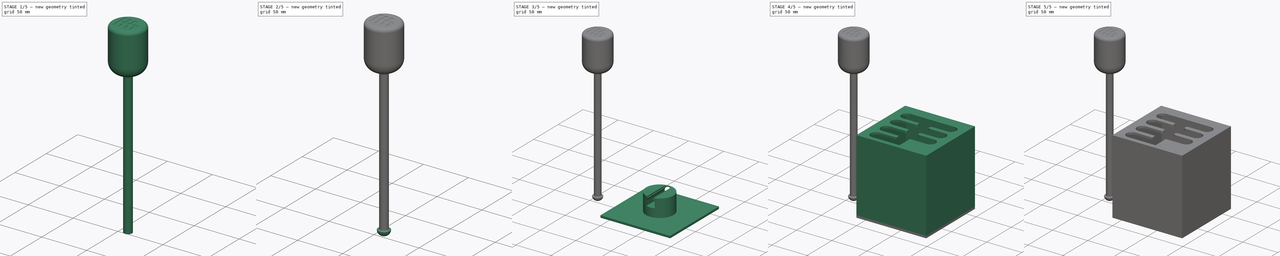
[diagram: build sequence overview — one tinted view per stage of 5, left to right]
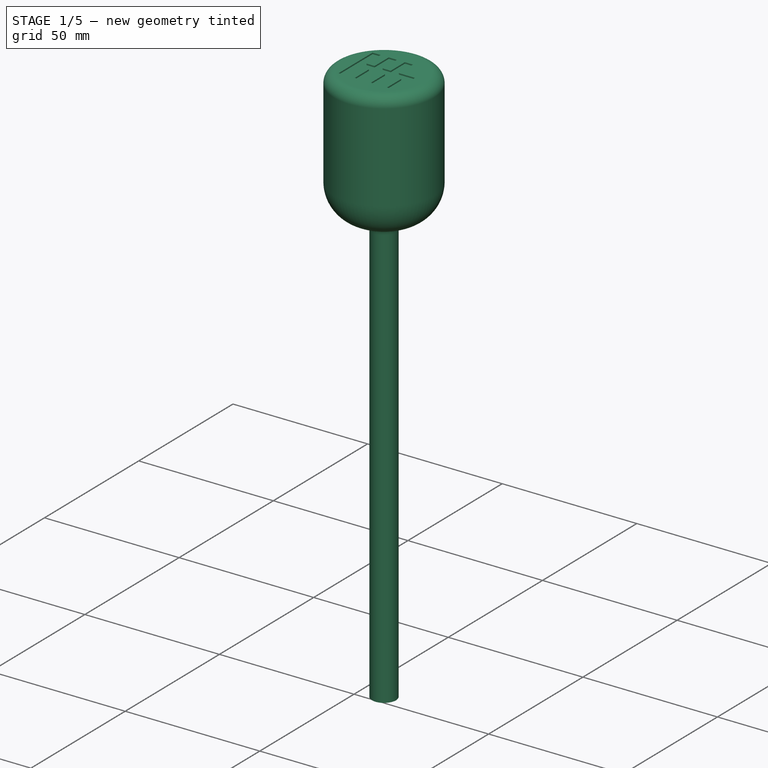
[diagram: stage 1 of 5 — iso view after this stage's code; geometry added in this stage tinted green]
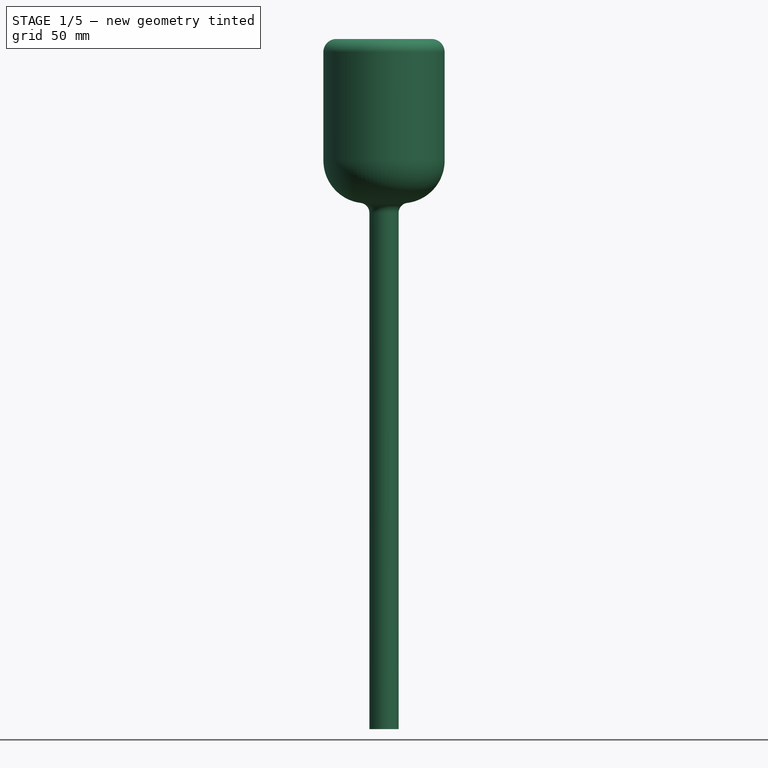
[diagram: stage 1 of 5 — front view after this stage's code; geometry added in this stage tinted green]
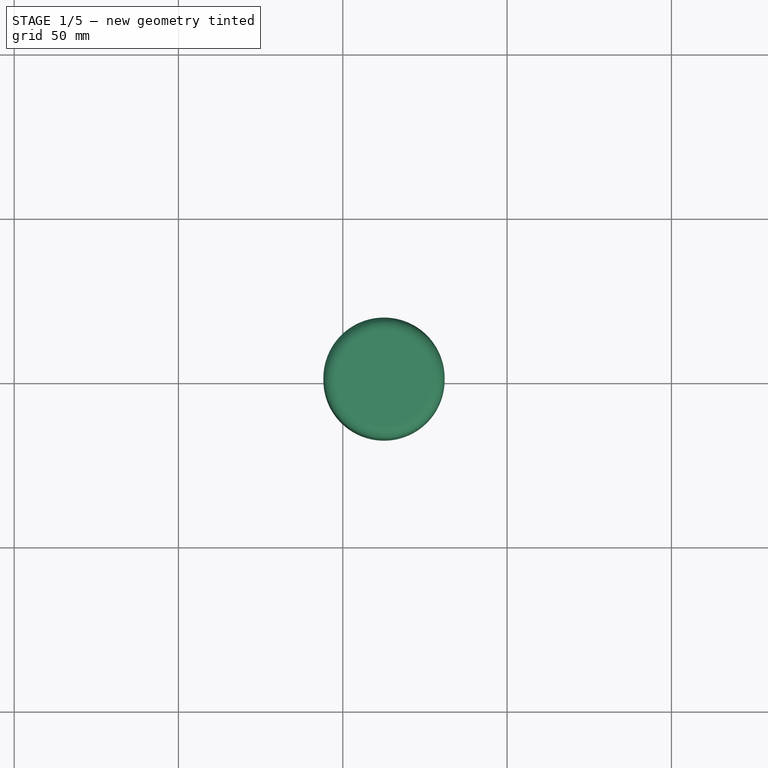
[diagram: stage 1 of 5 — top view after this stage's code; geometry added in this stage tinted green]
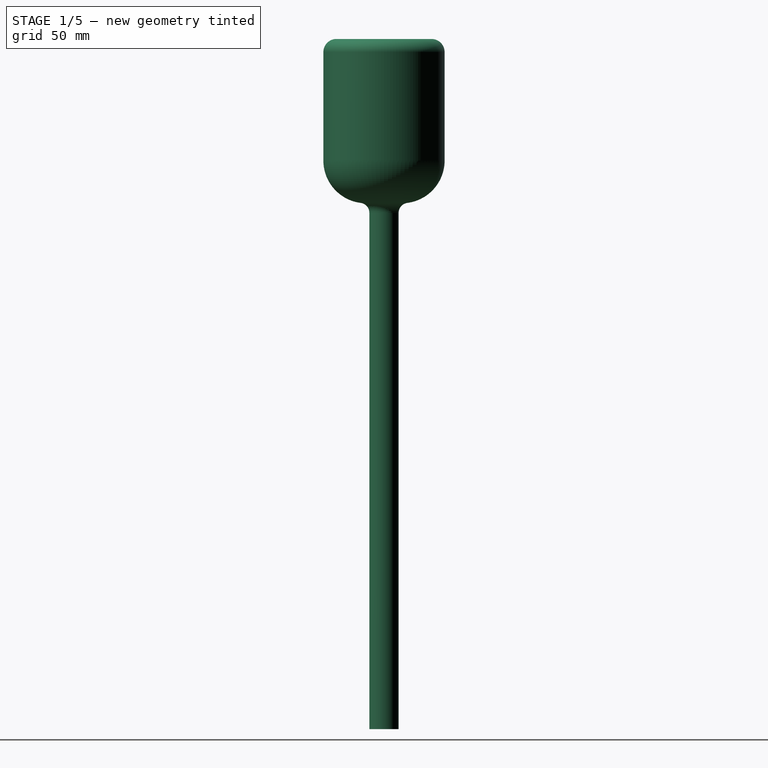
[diagram: stage 1 of 5 — right view after this stage's code; geometry added in this stage tinted green]
FCSTD DOCUMENT  (FreeCAD 0.20R29410 (Git))
Label: Cad_Project
License: All rights reserved
LicenseURL: http://en.wikipedia.org/wiki/All_rights_reserved
objects: Sketcher::SketchObject×26, PartDesign::Pocket×12, PartDesign::Pad×11, PartDesign::Fillet×11, PartDesign::Body×3
note: 97 computed .brp shape members not serialized (recipe doc carries the construction recipe); baked Part::Feature solids carry a one-line shape summary decoded from their .brp

FEATURE [Sketcher::SketchObject] Sketch005
  FullyConstrained = true
  MapMode = 5
  Placement = pos=(0,0,0) rot=(1,0,0;1.5708rad)
  Support = -> [XZ_Plane001]
FEATURE [Sketcher::SketchObject] Sketch006
  FullyConstrained = false
  MapMode = 5
  Support = -> [XY_Plane001]
  sketch-geometry (1):
    g0: Circle CenterX=-46.5019 CenterY=48 CenterZ=0 NormalX=0 NormalY=0 NormalZ=1 AngleXU=0 Radius=4.50189
FEATURE [PartDesign::Body] Body001
  Group = -> [Sketch005,Sketch006]
  Origin = -> Origin001
FEATURE [Sketcher::SketchObject] Sketch007
  FullyConstrained = false
  MapMode = 5
  Support = -> [XY_Plane002]
  sketch-geometry (1):
    g0: Circle CenterX=-37.4568 CenterY=48 CenterZ=0 NormalX=0 NormalY=0 NormalZ=1 AngleXU=0 Radius=4.4568
FEATURE [PartDesign::Pad] Pad003
  Direction = (0,0,1)
  Length = 160
  Length2 = 10
  Profile = -> Sketch007
  ReferenceAxis = -> Sketch007 [N_Axis]
  Type = 0
FEATURE [Sketcher::SketchObject] Sketch008
  FullyConstrained = false
  MapMode = 5
  Placement = pos=(0,0,160) rot=(0,0,1;0rad)
  Support = -> [Pad003]
  sketch-geometry (1):
    g0: Circle CenterX=-37.4547 CenterY=48 CenterZ=0 NormalX=0 NormalY=0 NormalZ=1 AngleXU=0 Radius=18.4513
FEATURE [PartDesign::Pad] Pad004
  BaseFeature = -> Pad003
  Direction = (0,0,1)
  Length = 50
  Length2 = 10
  Profile = -> Sketch008
  ReferenceAxis = -> Sketch008 [N_Axis]
  Type = 0
FEATURE [Sketcher::SketchObject] Sketch009
  FullyConstrained = true
  MapMode = 5
  Placement = pos=(0,0,210) rot=(0,0,1;0rad)
  Support = -> [Pad004]
FEATURE [PartDesign::Fillet] Fillet
  Base = -> Pad004 [Edge3]
  BaseFeature = -> Pad004
  Radius = 4
  SupportTransform = false
  UseAllEdges = false
FEATURE [PartDesign::Fillet] Fillet001
  Base = -> Fillet [Edge3]
  BaseFeature = -> Fillet
  Radius = 13
  SupportTransform = false
  UseAllEdges = false
FEATURE [PartDesign::Fillet] Fillet002
  Base = -> Fillet001 [Edge8]
  BaseFeature = -> Fillet001
  Radius = 3
  SupportTransform = false
  UseAllEdges = false
FEATURE [Sketcher::SketchObject] Sketch010
  FullyConstrained = false
  MapMode = 5
  Placement = pos=(0,0,210) rot=(0,0,1;0rad)
  Support = -> [Fillet002]
  sketch-geometry (4):
    g0: LineSegment StartX=-48 StartY=49.4787 StartZ=0 EndX=-27 EndY=49.4787 EndZ=0
    g1: LineSegment StartX=-27 StartY=49.4787 StartZ=0 EndX=-27 EndY=46.4908 EndZ=0
    g2: LineSegment StartX=-27 StartY=46.4908 StartZ=0 EndX=-48 EndY=46.4908 EndZ=0
    g3: LineSegment StartX=-48 StartY=46.4908 StartZ=0 EndX=-48 EndY=49.4787 EndZ=0
  constraints (8):
    c: Coincident(g0,g1)
    c: Coincident(g1,g2)
    c: Coincident(g2,g3)
    c: Coincident(g3,g0)
    c: Horizontal(g0)
    c: Horizontal(g2)
    c: Vertical(g1)
    c: Vertical(g3)
FEATURE [PartDesign::Pocket] Pocket001
  BaseFeature = -> Fillet002
  Direction = (0,0,-1)
  Length = 0.5
  Length2 = 5
  Profile = -> Sketch010
  ReferenceAxis = -> Sketch010 [N_Axis]
  Type = 0
FEATURE [Sketcher::SketchObject] Sketch011
  FullyConstrained = false
  MapMode = 5
  Placement = pos=(0,0,210) rot=(0,0,1;0rad)
  Support = -> [Pocket001]
  sketch-geometry (28):
    g0: LineSegment StartX=-48 StartY=49.5227 StartZ=0 EndX=-48 EndY=46.5039 EndZ=0
    g1: LineSegment StartX=-48 StartY=46.5039 StartZ=0 EndX=-48 EndY=39 EndZ=0
    g2: LineSegment StartX=-48 StartY=39 StartZ=0 EndX=-45 EndY=39 EndZ=0
    g3: LineSegment StartX=-45 StartY=39 StartZ=0 EndX=-45 EndY=46.456 EndZ=0
    g4: LineSegment StartX=-45 StartY=46.456 StartZ=0 EndX=-42 EndY=46.456 EndZ=0
    g5: LineSegment StartX=-42 StartY=46.456 StartZ=0 EndX=-42 EndY=39 EndZ=0
    g6: LineSegment StartX=-42 StartY=39 StartZ=0 EndX=-39 EndY=39 EndZ=0
    g7: LineSegment StartX=-39 StartY=39 StartZ=0 EndX=-39 EndY=46.456 EndZ=0
    g8: LineSegment StartX=-39 StartY=46.456 StartZ=0 EndX=-36 EndY=46.456 EndZ=0
    g9: LineSegment StartX=-36 StartY=46.456 StartZ=0 EndX=-36 EndY=39 EndZ=0
    g10: LineSegment StartX=-36 StartY=39 StartZ=0 EndX=-33 EndY=39 EndZ=0
    g11: LineSegment StartX=-33 StartY=39 StartZ=0 EndX=-33 EndY=46.5039 EndZ=0
    g12: LineSegment StartX=-33 StartY=46.5039 StartZ=0 EndX=-30 EndY=46.5039 EndZ=0
    g13: LineSegment StartX=-30 StartY=46.5039 StartZ=0 EndX=-30 EndY=39 EndZ=0
    g14: LineSegment StartX=-30 StartY=39 StartZ=0 EndX=-27 EndY=39 EndZ=0
    g15: LineSegment StartX=-27 StartY=39 StartZ=0 EndX=-27 EndY=49.5227 EndZ=0
    g16: LineSegment StartX=-27 StartY=49.5227 StartZ=0 EndX=-33 EndY=49.5227 EndZ=0
    g17: LineSegment StartX=-33 StartY=49.5227 StartZ=0 EndX=-33 EndY=57 EndZ=0
    g18: LineSegment StartX=-33 StartY=57 StartZ=0 EndX=-36 EndY=57 EndZ=0
    g19: LineSegment StartX=-36 StartY=57 StartZ=0 EndX=-36 EndY=49.4748 EndZ=0
    g20: LineSegment StartX=-36 StartY=49.4748 StartZ=0 EndX=-39 EndY=49.4748 EndZ=0
    g21: LineSegment StartX=-39 StartY=49.4748 StartZ=0 EndX=-39 EndY=57 EndZ=0
    g22: LineSegment StartX=-39 StartY=57 StartZ=0 EndX=-42 EndY=57 EndZ=0
    g23: LineSegment StartX=-42 StartY=57 StartZ=0 EndX=-42 EndY=49.4748 EndZ=0
    g24: LineSegment StartX=-42 StartY=49.4748 StartZ=0 EndX=-45 EndY=49.4748 EndZ=0
    g25: LineSegment StartX=-45 StartY=49.4748 StartZ=0 EndX=-45 EndY=57 EndZ=0
    g26: LineSegment StartX=-45 StartY=57 StartZ=0 EndX=-48 EndY=57 EndZ=0
    g27: LineSegment StartX=-48 StartY=57 StartZ=0 EndX=-48 EndY=49.5227 EndZ=0
  constraints (56):
    c: Vertical(g0)
    c: Coincident(g0,g1)
    c: Vertical(g1)
    c: Coincident(g1,g2)
    c: Horizontal(g2)
    c: Coincident(g2,g3)
    c: Vertical(g3)
    c: Coincident(g3,g4)
    c: Horizontal(g4)
    c: Coincident(g4,g5)
    c: Vertical(g5)
    c: Coincident(g5,g6)
    c: Horizontal(g6)
    c: Coincident(g6,g7)
    c: Vertical(g7)
    c: Coincident(g7,g8)
    c: Horizontal(g8)
    c: Coincident(g8,g9)
    c: Vertical(g9)
    c: Coincident(g9,g10)
    c: Horizontal(g10)
    c: Coincident(g10,g11)
    c: Vertical(g11)
    c: Coincident(g11,g12)
    c: Horizontal(g12)
    c: Coincident(g12,g13)
    c: Vertical(g13)
    c: Coincident(g13,g14)
    c: Horizontal(g14)
    c: Coincident(g14,g15)
    c: Vertical(g15)
    c: Coincident(g15,g16)
    c: Horizontal(g16)
    c: Coincident(g16,g17)
    c: Vertical(g17)
    c: Coincident(g17,g18)
    c: Horizontal(g18)
    c: Coincident(g18,g19)
    c: Vertical(g19)
    c: Coincident(g19,g20)
    c: Horizontal(g20)
    c: Coincident(g20,g21)
    c: Vertical(g21)
    c: Coincident(g21,g22)
    c: Horizontal(g22)
    c: Coincident(g22,g23)
    c: Vertical(g23)
    c: Coincident(g23,g24)
    c: Horizontal(g24)
    c: Coincident(g24,g25)
    c: Vertical(g25)
    c: Coincident(g25,g26)
    c: Horizontal(g26)
    c: Coincident(g26,g27)
    c: Coincident(g27,g0)
    c: Vertical(g27)
FEATURE [PartDesign::Pocket] Pocket002
  BaseFeature = -> Pocket001
  Direction = (0,0,-1)
  Length = 0.5
  Length2 = 5
  Profile = -> Sketch011
  ReferenceAxis = -> Sketch011 [N_Axis]
  Type = 0
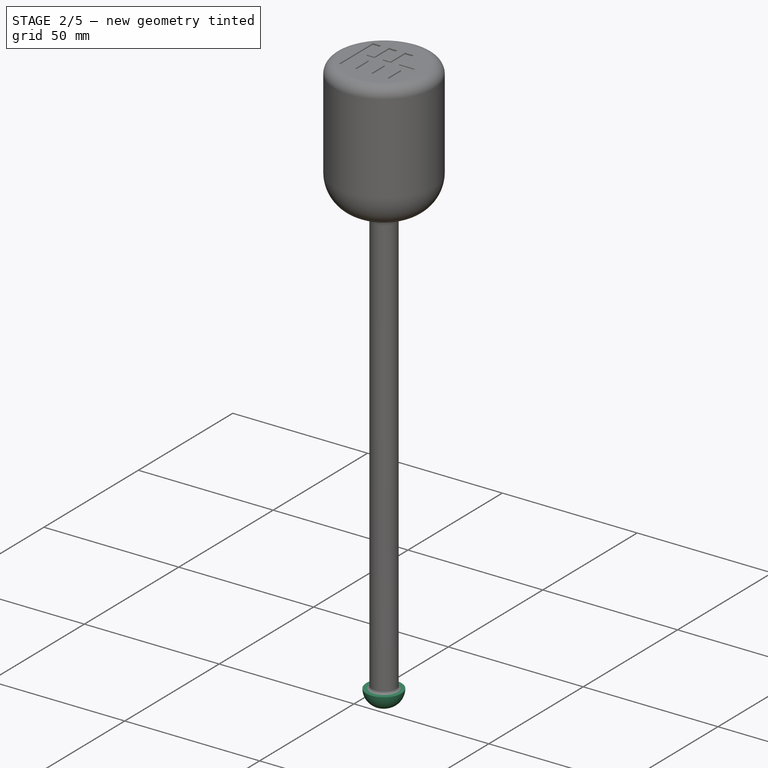
[diagram: stage 2 of 5 — iso view after this stage's code; geometry added in this stage tinted green]
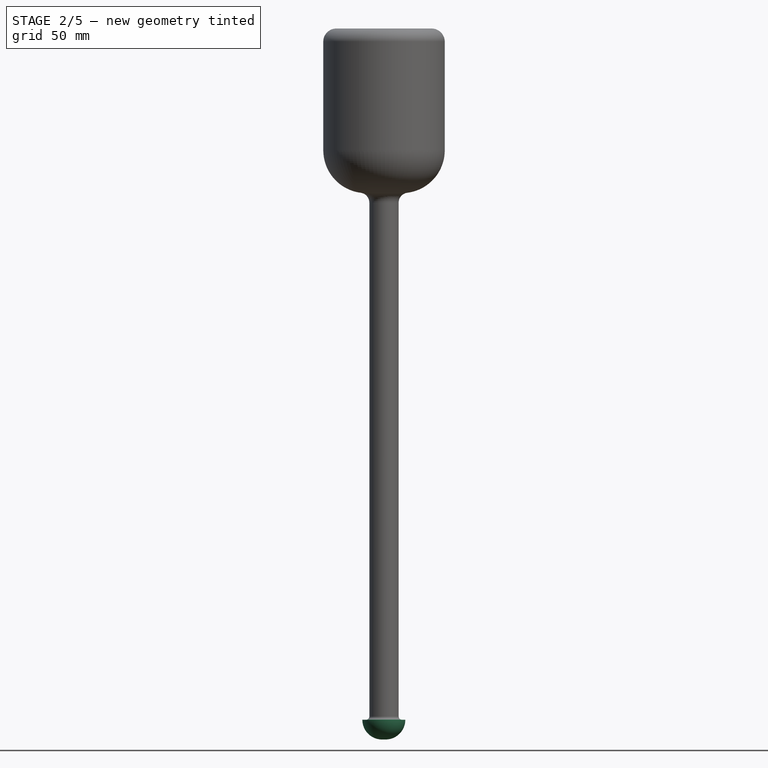
[diagram: stage 2 of 5 — front view after this stage's code; geometry added in this stage tinted green]
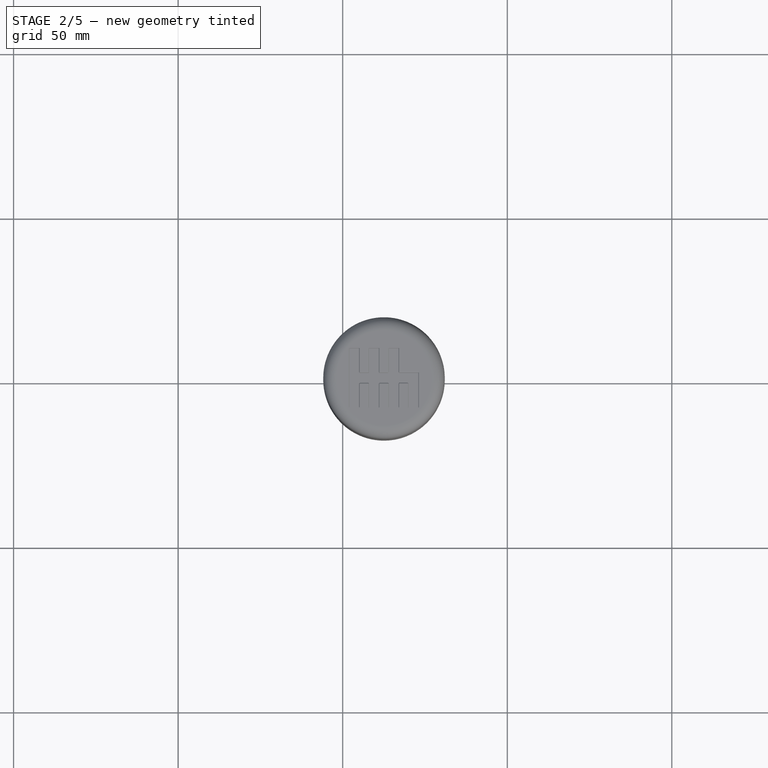
[diagram: stage 2 of 5 — top view after this stage's code; geometry added in this stage tinted green]
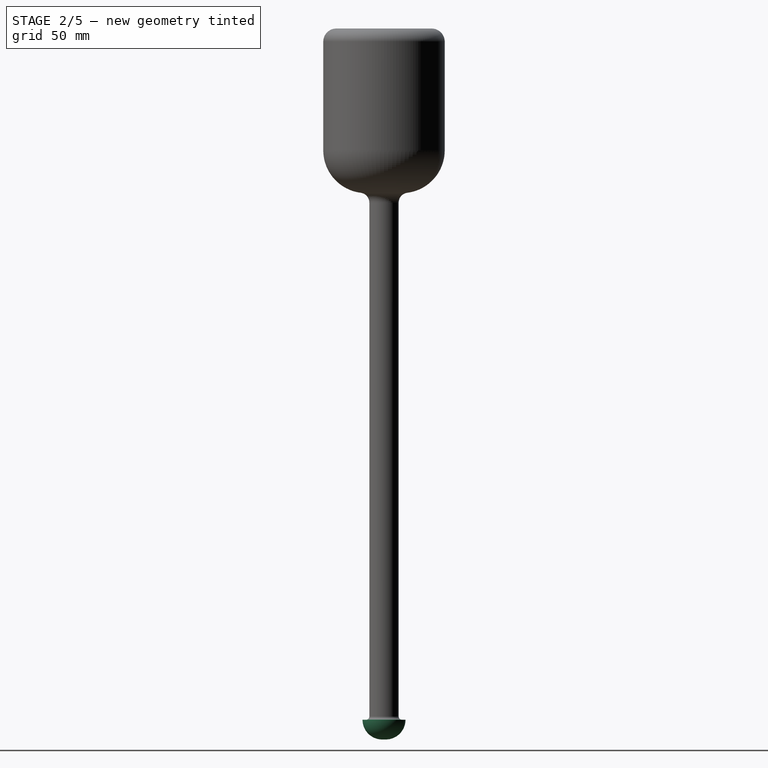
[diagram: stage 2 of 5 — right view after this stage's code; geometry added in this stage tinted green]
FEATURE [Sketcher::SketchObject] Sketch015
  FullyConstrained = false
  MapMode = 5
  Placement = pos=(0,0,0) rot=(1,0,0;3.14159rad)
  Support = -> [Pocket002]
  sketch-geometry (1):
    g0: Circle CenterX=-37.5222 CenterY=-48 CenterZ=0 NormalX=0 NormalY=0 NormalZ=1 AngleXU=0 Radius=5.98542
FEATURE [PartDesign::Pad] Pad005
  BaseFeature = -> Pocket002
  Direction = (0,0,-1)
  Length = 6
  Length2 = 10
  Profile = -> Sketch015
  ReferenceAxis = -> Sketch015 [N_Axis]
  Type = 0
FEATURE [PartDesign::Fillet] Fillet004
  Base = -> Pad005 [Edge3]
  BaseFeature = -> Pad005
  Radius = 5.98
  SupportTransform = false
  UseAllEdges = false
FEATURE [PartDesign::Fillet] Fillet005
  Base = -> Fillet004 [Edge6]
  BaseFeature = -> Fillet004
  Radius = 1
  SupportTransform = false
  UseAllEdges = false
FEATURE [Sketcher::SketchObject] Sketch016
  FullyConstrained = false
  MapMode = 5
  Placement = pos=(0,0,0) rot=(1,0,0;3.14159rad)
  Support = -> [Pad004]
  sketch-geometry (1):
    g0: Circle CenterX=-37.5122 CenterY=-48 CenterZ=0 NormalX=0 NormalY=0 NormalZ=1 AngleXU=0 Radius=6.52412
FEATURE [PartDesign::Pad] Pad006
  BaseFeature = -> Fillet005
  Direction = (0,0,-1)
  Length = 6
  Length2 = 10
  Profile = -> Sketch016
  ReferenceAxis = -> Sketch016 [N_Axis]
  Type = 0
FEATURE [PartDesign::Fillet] Fillet009
  Base = -> Pad006 [Edge45,Edge43,Edge41,Edge39,Edge37,Edge29,Edge31,Edge33,Edge34,Edge27,Edge25,Edge23,Edge21,Edge19,Edge49,Edge47]
  BaseFeature = -> Pad006
  Radius = 0.3
  SupportTransform = false
  UseAllEdges = false
FEATURE [PartDesign::Fillet] Fillet010
  Base = -> Fillet009 [Edge28,Edge40,Edge13,Edge25,Edge1,Edge43]
  BaseFeature = -> Fillet009
  Radius = 0.3
  SupportTransform = false
  UseAllEdges = false
FEATURE [PartDesign::Body] Body
  Group = -> [Sketch,Pad,Sketch001,Pad001,Sketch002,Pad002,Sketch003,Pocket,Sketch012,Pocket003,Sketch013,Pocket004,Sketch014,Pocket005,Fillet003,Sketch017,Pad007,Sketch018,Pad008,Sketch019,Pocket006,Sketch020,Pocket007,Fillet007,Fillet008,Sketch021,Pad009,Sketch022,Pocket008,Sketch023,Pocket009,Sketch024,Pad010,Sketch025,Pocket010,Sketch026,Pocket011]
  Origin = -> Origin
  Tip = -> Pocket011
FEATURE [PartDesign::Fillet] Fillet011
  Base = -> Fillet010 [Edge262]
  BaseFeature = -> Fillet010
  Radius = 5.98
  SupportTransform = false
  UseAllEdges = false
FEATURE [PartDesign::Body] Body002
  Group = -> [Sketch007,Pad003,Sketch008,Pad004,Sketch009,Fillet,Fillet001,Fillet002,Sketch010,Pocket001,Sketch011,Pocket002,Sketch015,Pad005,Fillet004,Fillet005,Sketch016,Pad006,Fillet009,Fillet010,Fillet011]
  Origin = -> Origin002
  Tip = -> Fillet011
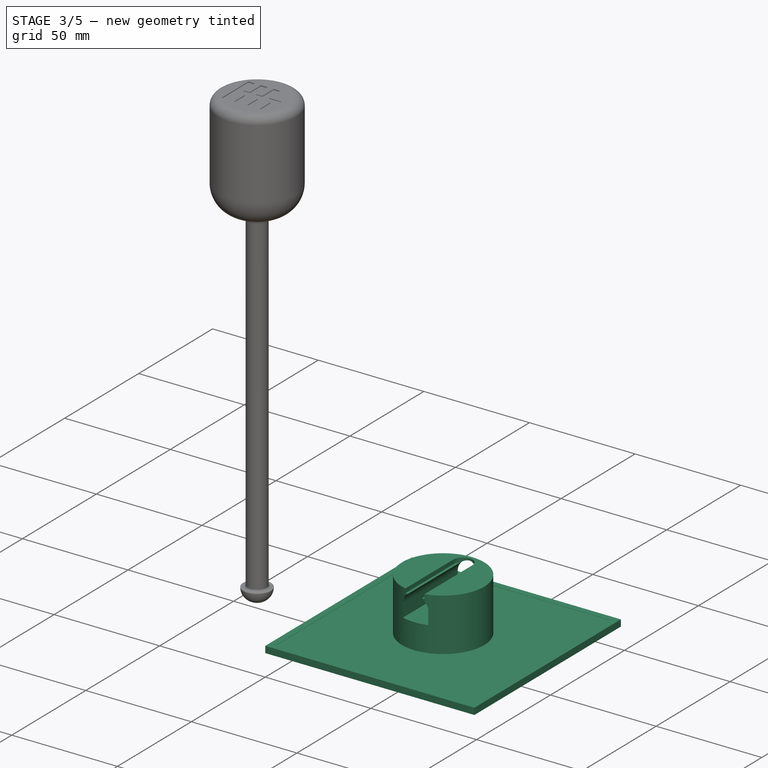
[diagram: stage 3 of 5 — iso view after this stage's code; geometry added in this stage tinted green]
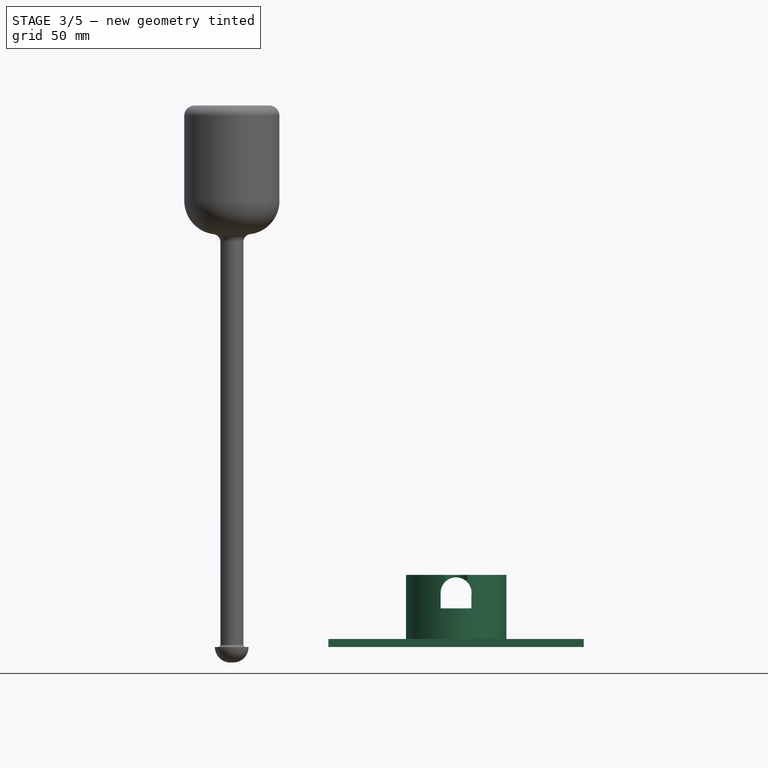
[diagram: stage 3 of 5 — front view after this stage's code; geometry added in this stage tinted green]
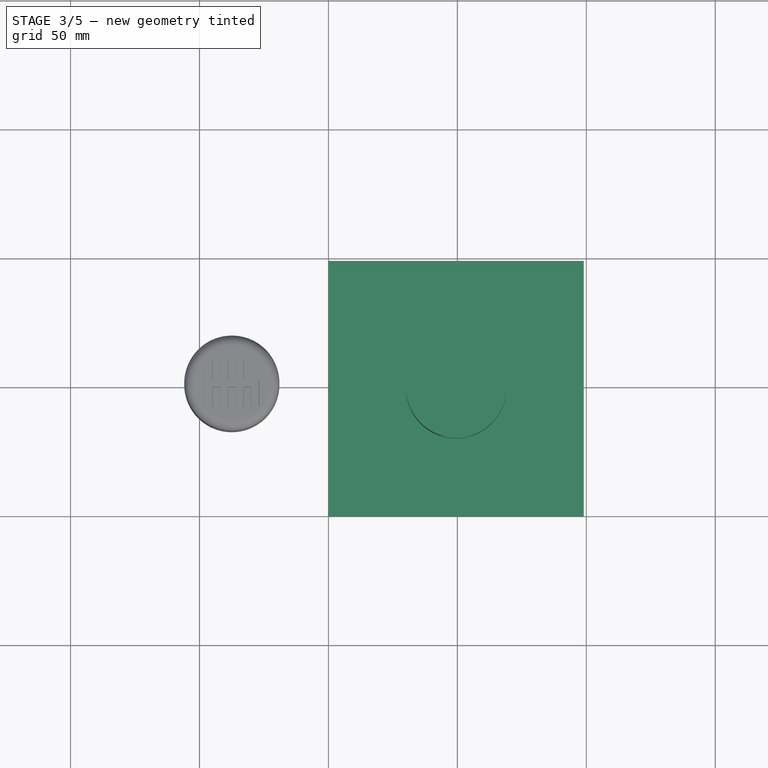
[diagram: stage 3 of 5 — top view after this stage's code; geometry added in this stage tinted green]
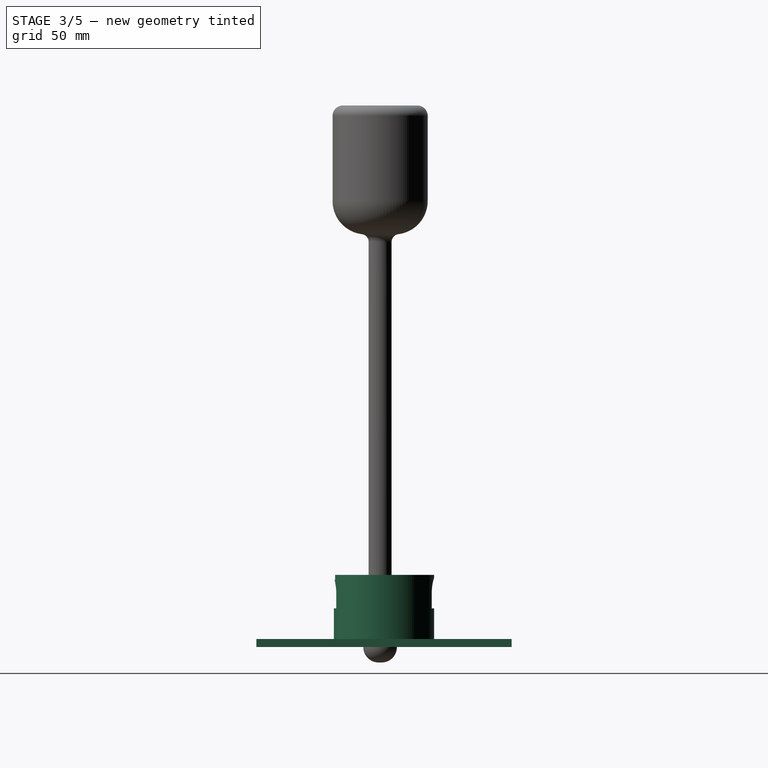
[diagram: stage 3 of 5 — right view after this stage's code; geometry added in this stage tinted green]
FEATURE [Sketcher::SketchObject] Sketch
  FullyConstrained = true
  MapMode = 5
  Support = -> [XY_Plane]
  sketch-geometry (4):
    g0: LineSegment StartX=0 StartY=0 StartZ=0 EndX=99 EndY=0 EndZ=0
    g1: LineSegment StartX=99 StartY=0 StartZ=0 EndX=99 EndY=99 EndZ=0
    g2: LineSegment StartX=99 StartY=99 StartZ=0 EndX=0 EndY=99 EndZ=0
    g3: LineSegment StartX=0 StartY=99 StartZ=0 EndX=0 EndY=0 EndZ=0
  constraints (11):
    c: Coincident(g0,g1)
    c: Coincident(g1,g2)
    c: Coincident(g2,g3)
    c: Coincident(g3,g0)
    c: Horizontal(g0)
    c: Horizontal(g2)
    c: Vertical(g1)
    c: Vertical(g3)
    c: Coincident(g0,g-1)
    c: DistanceX(g2,g1) = 99
    c: DistanceY(g0,g1) = 99
FEATURE [PartDesign::Pad] Pad
  Direction = (0,0,1)
  Length = 3
  Length2 = 10
  Profile = -> Sketch
  ReferenceAxis = -> Sketch [N_Axis]
  Type = 0
FEATURE [Sketcher::SketchObject] Sketch001
  FullyConstrained = true
  MapMode = 5
  Placement = pos=(0,0,3) rot=(0,0,1;0rad)
  Support = -> [Pad]
  sketch-geometry (8):
    g0: LineSegment StartX=3 StartY=96 StartZ=0 EndX=96 EndY=96 EndZ=0
    g1: LineSegment StartX=96 StartY=96 StartZ=0 EndX=96 EndY=3 EndZ=0
    g2: LineSegment StartX=96 StartY=3 StartZ=0 EndX=3 EndY=3 EndZ=0
    g3: LineSegment StartX=3 StartY=3 StartZ=0 EndX=3 EndY=96 EndZ=0
    g4: LineSegment StartX=0 StartY=99 StartZ=0 EndX=99 EndY=99 EndZ=0
    g5: LineSegment StartX=99 StartY=99 StartZ=0 EndX=99 EndY=0 EndZ=0
    g6: LineSegment StartX=99 StartY=0 StartZ=0 EndX=0 EndY=0 EndZ=0
    g7: LineSegment StartX=0 StartY=0 StartZ=0 EndX=0 EndY=99 EndZ=0
  constraints (24):
    c: Coincident(g0,g1)
    c: Coincident(g1,g2)
    c: Coincident(g2,g3)
    c: Coincident(g3,g0)
    c: Horizontal(g0)
    c: Horizontal(g2)
    c: Vertical(g1)
    c: Vertical(g3)
    c: DistanceX(g0,g0) = 93
    c: DistanceY(g1,g0) = 93
    c: Coincident(g4,g5)
    c: Coincident(g5,g6)
    c: Coincident(g6,g7)
    c: Coincident(g7,g4)
    c: Horizontal(g4)
    c: Horizontal(g6)
    c: Vertical(g5)
    c: Vertical(g7)
    c: PointOnObject(g4,g-2)
    c: PointOnObject(g5,g-1)
    c: DistanceX(g4,g4) = 99
    c: DistanceY(g5,g4) = 99
    c: DistanceY(g0,g4) = 3
    c: DistanceX(g1,g5) = 3
FEATURE [PartDesign::Pad] Pad001
  BaseFeature = -> Pad
  Direction = (0,0,1)
  Length = 0.1
  Length2 = 10
  Profile = -> Sketch001
  ReferenceAxis = -> Sketch001 [N_Axis]
  Type = 0
  expr: Length = 0.1
FEATURE [Sketcher::SketchObject] Sketch002
  FullyConstrained = false
  MapMode = 5
  Placement = pos=(0,0,3) rot=(0,0,1;0rad)
  Support = -> [Pad001]
  sketch-geometry (1):
    g0: Circle CenterX=49.5438 CenterY=49.4993 CenterZ=0 NormalX=0 NormalY=0 NormalZ=1 AngleXU=0 Radius=19.455
  constraints (1):
    c: Diameter(g0) = 38.91
FEATURE [PartDesign::Pad] Pad002
  BaseFeature = -> Pad001
  Direction = (0,0,1)
  Length = 25
  Length2 = 10
  Profile = -> Sketch002
  ReferenceAxis = -> Sketch002 [N_Axis]
  Type = 0
FEATURE [Sketcher::SketchObject] Sketch003
  FullyConstrained = false
  MapMode = 5
  Placement = pos=(0,0,0) rot=(1,0,0;1.5708rad)
  Support = -> [Pad002]
  sketch-geometry (1):
    g0: Circle CenterX=49.5063 CenterY=21 CenterZ=0 NormalX=0 NormalY=0 NormalZ=1 AngleXU=0 Radius=6.00238
FEATURE [PartDesign::Pocket] Pocket
  BaseFeature = -> Pad002
  Direction = (0,1,-2e-16)
  Length = 5
  Length2 = 5
  Profile = -> Sketch003
  ReferenceAxis = -> Sketch003 [N_Axis]
  Type = 1
FEATURE [Sketcher::SketchObject] Sketch012
  FullyConstrained = false
  MapMode = 5
  Placement = pos=(0,0,28) rot=(0,0,1;0rad)
  Support = -> [Pocket]
  sketch-geometry (4):
    g0: ArcOfCircle CenterX=49.4646 CenterY=63 CenterZ=0 NormalX=0 NormalY=0 NormalZ=1 AngleXU=0 Radius=4.53537 StartAngle=1.07645e-07 EndAngle=3.14159
    g1: LineSegment StartX=44.9293 StartY=63 StartZ=0 EndX=44.9293 EndY=30 EndZ=0
    g2: LineSegment StartX=44.9293 StartY=30 StartZ=0 EndX=54 EndY=30 EndZ=0
    g3: LineSegment StartX=54 StartY=30 StartZ=0 EndX=54 EndY=63 EndZ=0
  constraints (6):
    c: Tangent(g0,g1) = -1.5708
    c: Coincident(g1,g2)
    c: Horizontal(g2)
    c: Coincident(g2,g3)
    c: Coincident(g3,g0)
    c: Vertical(g3)
FEATURE [PartDesign::Pocket] Pocket003
  BaseFeature = -> Pocket
  Direction = (0,0,-1)
  Length = 2
  Length2 = 5
  Profile = -> Sketch012
  ReferenceAxis = -> Sketch012 [N_Axis]
  Type = 0
FEATURE [Sketcher::SketchObject] Sketch013
  FullyConstrained = false
  MapMode = 5
  Placement = pos=(0,0,0) rot=(1,0,0;1.5708rad)
  Support = -> [Pocket003]
  sketch-geometry (4):
    g0: LineSegment StartX=55.4524 StartY=15 StartZ=0 EndX=43.4858 EndY=15 EndZ=0
    g1: LineSegment StartX=43.4858 StartY=15 StartZ=0 EndX=43.4858 EndY=21 EndZ=0
    g2: LineSegment StartX=43.4858 StartY=21 StartZ=0 EndX=55.4524 EndY=21 EndZ=0
    g3: LineSegment StartX=55.4524 StartY=21 StartZ=0 EndX=55.4524 EndY=15 EndZ=0
  constraints (8):
    c: Coincident(g0,g1)
    c: Coincident(g1,g2)
    c: Coincident(g2,g3)
    c: Coincident(g3,g0)
    c: Horizontal(g0)
    c: Horizontal(g2)
    c: Vertical(g1)
    c: Vertical(g3)
FEATURE [PartDesign::Pocket] Pocket004
  BaseFeature = -> Pocket003
  Direction = (0,1,-2e-16)
  Length = 5
  Length2 = 5
  Profile = -> Sketch013
  ReferenceAxis = -> Sketch013 [N_Axis]
  Type = 1
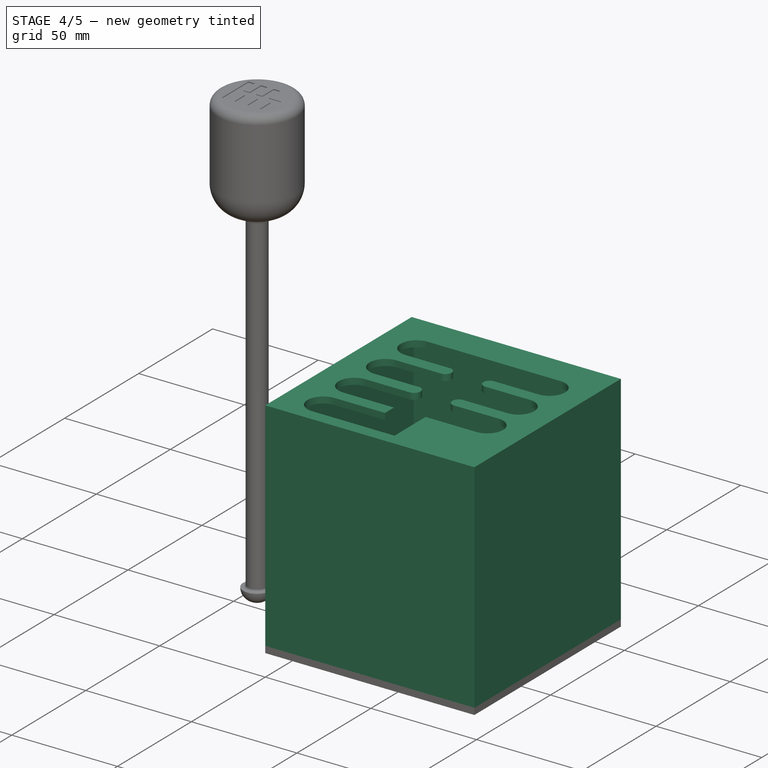
[diagram: stage 4 of 5 — iso view after this stage's code; geometry added in this stage tinted green]
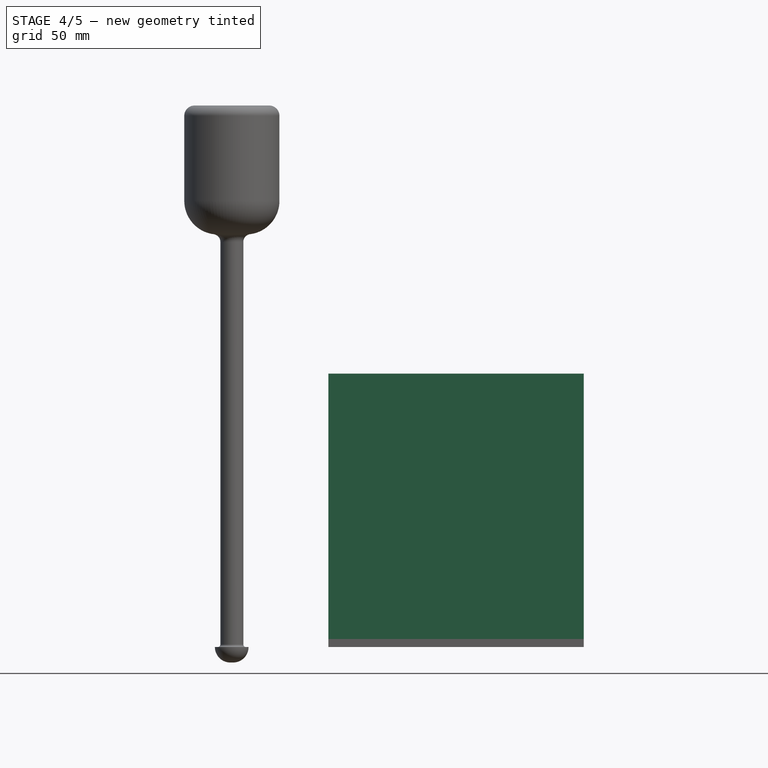
[diagram: stage 4 of 5 — front view after this stage's code; geometry added in this stage tinted green]
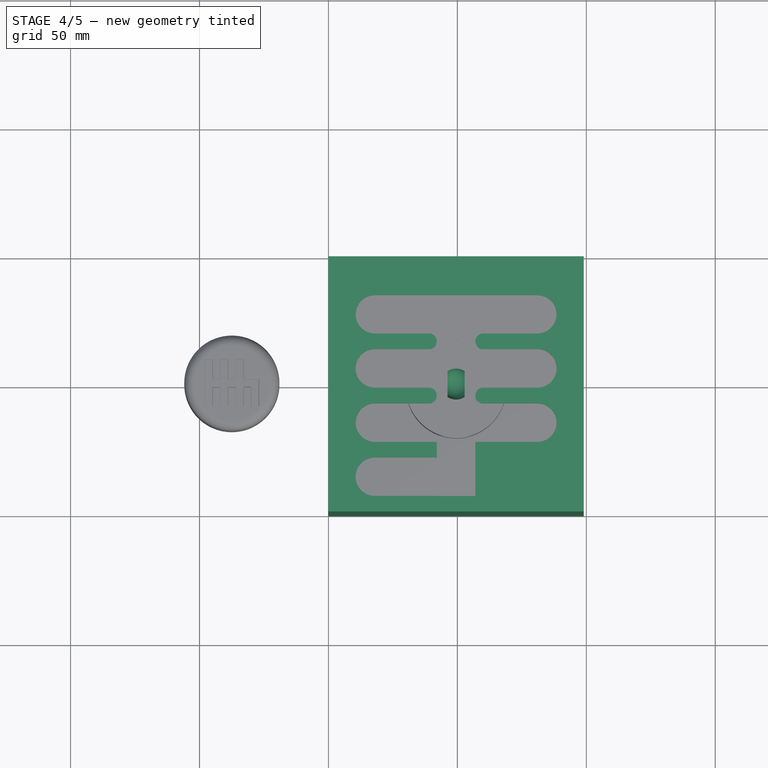
[diagram: stage 4 of 5 — top view after this stage's code; geometry added in this stage tinted green]
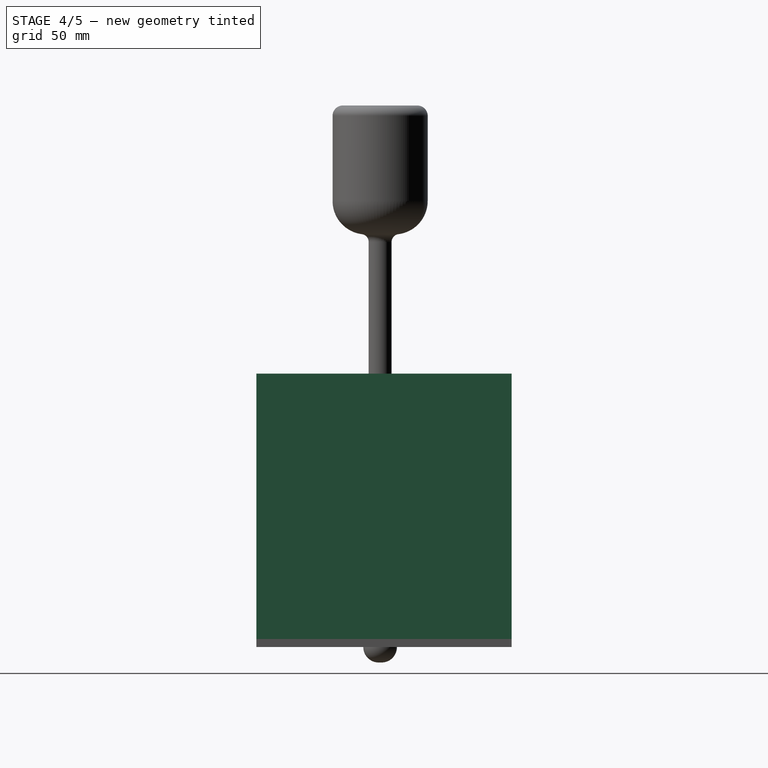
[diagram: stage 4 of 5 — right view after this stage's code; geometry added in this stage tinted green]
FEATURE [Sketcher::SketchObject] Sketch014
  FullyConstrained = false
  MapMode = 5
  Placement = pos=(0,3.3e-15,15) rot=(0,0,1;0rad)
  Support = -> [Pocket004]
  sketch-geometry (1):
    g0: Circle CenterX=49.5368 CenterY=51 CenterZ=0 NormalX=0 NormalY=0 NormalZ=1 AngleXU=0 Radius=6.00016
FEATURE [PartDesign::Pocket] Pocket005
  BaseFeature = -> Pocket004
  Direction = (0,-2e-16,-1)
  Length = 6
  Length2 = 5
  Profile = -> Sketch014
  ReferenceAxis = -> Sketch014 [N_Axis]
  Type = 0
FEATURE [PartDesign::Fillet] Fillet003
  Base = -> Pocket005 [Edge90]
  BaseFeature = -> Pocket005
  Radius = 5.99
  SupportTransform = false
  UseAllEdges = false
FEATURE [Sketcher::SketchObject] Sketch017
  FullyConstrained = false
  MapMode = 5
  Placement = pos=(0,0,3) rot=(0,0,1;0rad)
  Support = -> [Fillet003]
  sketch-geometry (8):
    g0: LineSegment StartX=0 StartY=99 StartZ=0 EndX=99 EndY=99 EndZ=0
    g1: LineSegment StartX=99 StartY=99 StartZ=0 EndX=99 EndY=0 EndZ=0
    g2: LineSegment StartX=99 StartY=0 StartZ=0 EndX=0 EndY=0 EndZ=0
    g3: LineSegment StartX=0 StartY=0 StartZ=0 EndX=0 EndY=99 EndZ=0
    g4: LineSegment StartX=96 StartY=3 StartZ=0 EndX=3 EndY=3 EndZ=0
    g5: LineSegment StartX=3 StartY=3 StartZ=0 EndX=3 EndY=96 EndZ=0
    g6: LineSegment StartX=3 StartY=96 StartZ=0 EndX=96 EndY=96 EndZ=0
    g7: LineSegment StartX=96 StartY=96 StartZ=0 EndX=96 EndY=3 EndZ=0
  constraints (18):
    c: Coincident(g0,g1)
    c: Coincident(g1,g2)
    c: Coincident(g2,g3)
    c: Coincident(g3,g0)
    c: Horizontal(g0)
    c: Horizontal(g2)
    c: Vertical(g1)
    c: Vertical(g3)
    c: PointOnObject(g0,g-2)
    c: PointOnObject(g1,g-1)
    c: Coincident(g4,g5)
    c: Coincident(g5,g6)
    c: Coincident(g6,g7)
    c: Coincident(g7,g4)
    c: Horizontal(g4)
    c: Horizontal(g6)
    c: Vertical(g5)
    c: Vertical(g7)
FEATURE [PartDesign::Pad] Pad007
  BaseFeature = -> Fillet003
  Direction = (0,0,1)
  Length = 100
  Length2 = 10
  Profile = -> Sketch017
  ReferenceAxis = -> Sketch017 [N_Axis]
  Type = 0
FEATURE [Sketcher::SketchObject] Sketch018
  FullyConstrained = false
  MapMode = 5
  Placement = pos=(0,0,103) rot=(0,0,1;0rad)
  Support = -> [Pad007]
  sketch-geometry (4):
    g0: LineSegment StartX=0 StartY=99 StartZ=0 EndX=99 EndY=99 EndZ=0
    g1: LineSegment StartX=99 StartY=99 StartZ=0 EndX=99 EndY=0 EndZ=0
    g2: LineSegment StartX=99 StartY=0 StartZ=0 EndX=0 EndY=0 EndZ=0
    g3: LineSegment StartX=0 StartY=0 StartZ=0 EndX=0 EndY=99 EndZ=0
  constraints (10):
    c: Coincident(g0,g1)
    c: Coincident(g1,g2)
    c: Coincident(g2,g3)
    c: Coincident(g3,g0)
    c: Horizontal(g0)
    c: Horizontal(g2)
    c: Vertical(g1)
    c: Vertical(g3)
    c: PointOnObject(g0,g-2)
    c: PointOnObject(g1,g-1)
FEATURE [PartDesign::Pad] Pad008
  BaseFeature = -> Pad007
  Direction = (0,0,1)
  Length = 3
  Length2 = 10
  Profile = -> Sketch018
  ReferenceAxis = -> Sketch018 [N_Axis]
  Type = 0
FEATURE [Sketcher::SketchObject] Sketch019
  FullyConstrained = false
  MapMode = 5
  Placement = pos=(0,0,106) rot=(0,0,1;0rad)
  Support = -> [Pad008]
  sketch-geometry (4):
    g0: LineSegment StartX=57 StartY=6 StartZ=0 EndX=42 EndY=6 EndZ=0
    g1: LineSegment StartX=42 StartY=6 StartZ=0 EndX=42 EndY=81 EndZ=0
    g2: LineSegment StartX=42 StartY=81 StartZ=0 EndX=57 EndY=81 EndZ=0
    g3: LineSegment StartX=57 StartY=81 StartZ=0 EndX=57 EndY=6 EndZ=0
  constraints (8):
    c: Coincident(g0,g1)
    c: Coincident(g1,g2)
    c: Coincident(g2,g3)
    c: Coincident(g3,g0)
    c: Horizontal(g0)
    c: Horizontal(g2)
    c: Vertical(g1)
    c: Vertical(g3)
FEATURE [PartDesign::Pocket] Pocket006
  BaseFeature = -> Pad008
  Direction = (0,0,-1)
  Length = 3
  Length2 = 5
  Profile = -> Sketch019
  ReferenceAxis = -> Sketch019 [N_Axis]
  Type = 0
FEATURE [Sketcher::SketchObject] Sketch020
  FullyConstrained = false
  MapMode = 5
  Placement = pos=(0,0,106) rot=(0,0,1;0rad)
  Support = -> [Pocket006]
  sketch-geometry (16):
    g0: ArcOfCircle CenterX=18.0161 CenterY=55.5116 CenterZ=0 NormalX=0 NormalY=0 NormalZ=1 AngleXU=0 Radius=7.481 StartAngle=1.5708 EndAngle=4.71239
    g1: ArcOfCircle CenterX=81 CenterY=55.5116 CenterZ=0 NormalX=0 NormalY=0 NormalZ=1 AngleXU=0 Radius=7.481 StartAngle=4.71239 EndAngle=7.85398
    g2: LineSegment StartX=18.0161 StartY=48.0306 StartZ=0 EndX=81 EndY=48.0306 EndZ=0
    g3: LineSegment StartX=81 StartY=62.9926 StartZ=0 EndX=18.0161 EndY=62.9926 EndZ=0
    g4: ArcOfCircle CenterX=18.0499 CenterY=34.4512 CenterZ=0 NormalX=0 NormalY=0 NormalZ=1 AngleXU=0 Radius=7.4635 StartAngle=1.5708 EndAngle=4.71239
    g5: ArcOfCircle CenterX=81 CenterY=34.4512 CenterZ=0 NormalX=0 NormalY=0 NormalZ=1 AngleXU=0 Radius=7.4635 StartAngle=4.71239 EndAngle=7.85398
    g6: LineSegment StartX=18.0499 StartY=26.9877 StartZ=0 EndX=81 EndY=26.9877 EndZ=0
    g7: LineSegment StartX=81 StartY=41.9147 StartZ=0 EndX=18.0499 EndY=41.9147 EndZ=0
    g8: ArcOfCircle CenterX=18.0252 CenterY=76.4839 CenterZ=0 NormalX=0 NormalY=0 NormalZ=1 AngleXU=0 Radius=7.44592 StartAngle=1.5708 EndAngle=4.71239
    g9: ArcOfCircle CenterX=81 CenterY=76.4839 CenterZ=0 NormalX=0 NormalY=0 NormalZ=1 AngleXU=0 Radius=7.44592 StartAngle=4.71239 EndAngle=7.85398
    g10: LineSegment StartX=18.0252 StartY=69.0379 StartZ=0 EndX=81 EndY=69.0379 EndZ=0
    g11: LineSegment StartX=81 StartY=83.9298 StartZ=0 EndX=18.0252 EndY=83.9298 EndZ=0
    g12: ArcOfCircle CenterX=18.0174 CenterY=13.4974 CenterZ=0 NormalX=0 NormalY=0 NormalZ=1 AngleXU=0 Radius=7.46604 StartAngle=1.5708 EndAngle=4.71239
    g13: ArcOfCircle CenterX=48 CenterY=13.4974 CenterZ=0 NormalX=0 NormalY=0 NormalZ=1 AngleXU=0 Radius=7.46604 StartAngle=4.71239 EndAngle=7.85398
    g14: LineSegment StartX=18.0174 StartY=6.0314 StartZ=0 EndX=48 EndY=6.0314 EndZ=0
    g15: LineSegment StartX=48 StartY=20.9635 StartZ=0 EndX=18.0174 EndY=20.9635 EndZ=0
  constraints (24):
    c: Tangent(g0,g2) = -1.5708
    c: Tangent(g2,g1) = -1.5708
    c: Tangent(g1,g3) = -1.5708
    c: Tangent(g3,g0) = -1.5708
    c: Equal(g0,g1)
    c: Horizontal(g2)
    c: Tangent(g4,g6) = -1.5708
    c: Tangent(g6,g5) = -1.5708
    c: Tangent(g5,g7) = -1.5708
    c: Tangent(g7,g4) = -1.5708
    c: Equal(g4,g5)
    c: Horizontal(g6)
    c: Tangent(g8,g10) = -1.5708
    c: Tangent(g10,g9) = -1.5708
    c: Tangent(g9,g11) = -1.5708
    c: Tangent(g11,g8) = -1.5708
    c: Equal(g8,g9)
    c: Horizontal(g10)
    c: Tangent(g12,g14) = -1.5708
    c: Tangent(g14,g13) = -1.5708
    c: Tangent(g13,g15) = -1.5708
    c: Tangent(g15,g12) = -1.5708
    c: Equal(g12,g13)
    c: Horizontal(g14)
FEATURE [PartDesign::Pocket] Pocket007
  BaseFeature = -> Pocket006
  Direction = (0,0,-1)
  Length = 3
  Length2 = 5
  Profile = -> Sketch020
  ReferenceAxis = -> Sketch020 [N_Axis]
  Type = 0
FEATURE [PartDesign::Fillet] Fillet007
  Base = -> Pocket007 [Edge110,Edge113,Edge118,Edge67,Edge77,Edge85,Edge82,Edge74]
  BaseFeature = -> Pocket007
  Radius = 3
  SupportTransform = false
  UseAllEdges = false
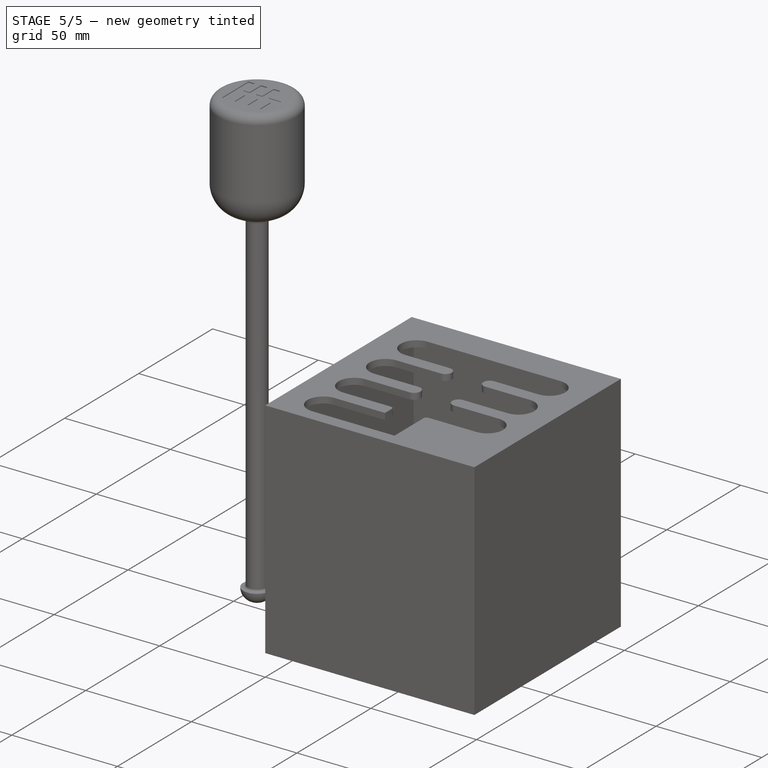
[diagram: stage 5 of 5 — iso view after this stage's code; geometry added in this stage tinted green]
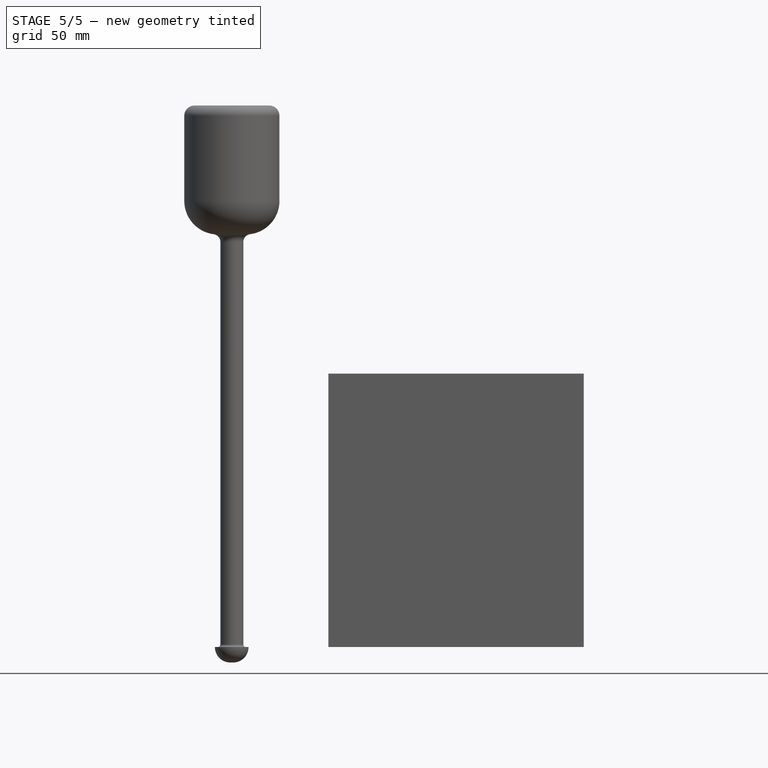
[diagram: stage 5 of 5 — front view after this stage's code; geometry added in this stage tinted green]
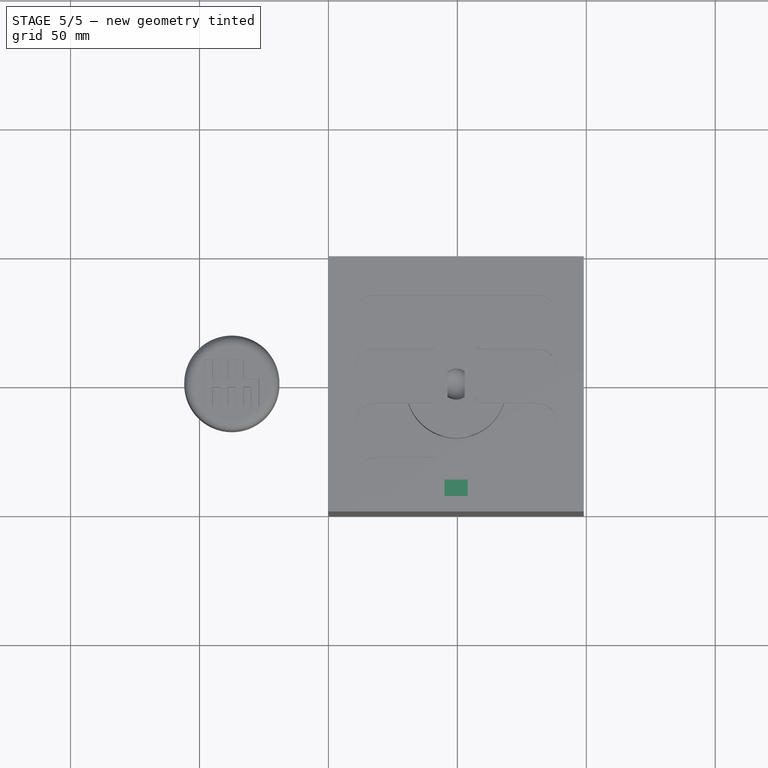
[diagram: stage 5 of 5 — top view after this stage's code; geometry added in this stage tinted green]
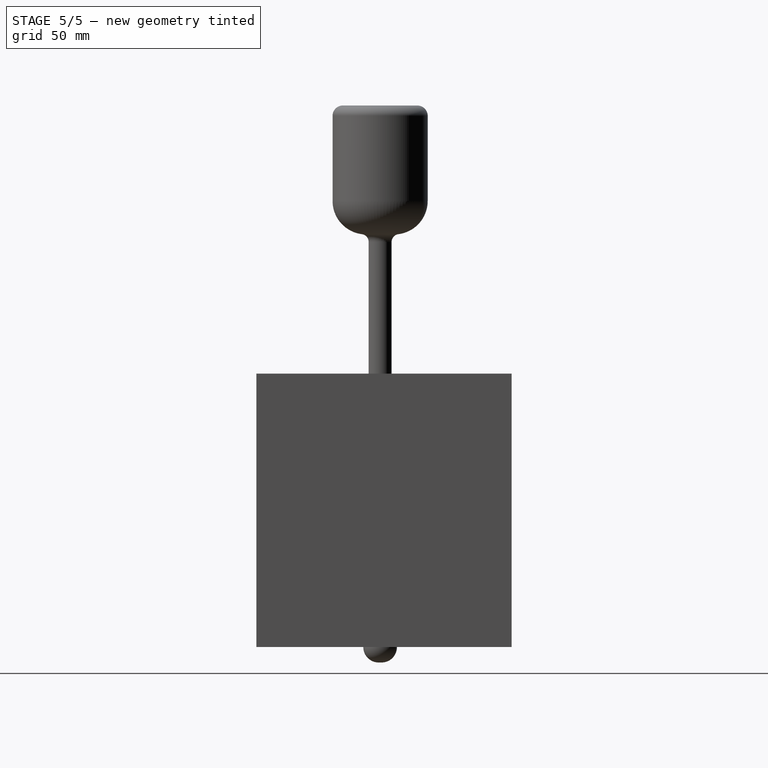
[diagram: stage 5 of 5 — right view after this stage's code; geometry added in this stage tinted green]
FEATURE [PartDesign::Fillet] Fillet008
  Base = -> Fillet007 [Edge106,Edge89]
  BaseFeature = -> Fillet007
  Radius = 1.5
  SupportTransform = false
  UseAllEdges = false
FEATURE [Sketcher::SketchObject] Sketch021
  FullyConstrained = false
  MapMode = 5
  Placement = pos=(0,96,0) rot=(1,0,0;1.5708rad)
  Support = -> [Fillet008]
  sketch-geometry (4):
    g0: LineSegment StartX=45 StartY=69 StartZ=0 EndX=54 EndY=69 EndZ=0
    g1: LineSegment StartX=54 StartY=69 StartZ=0 EndX=54 EndY=63 EndZ=0
    g2: LineSegment StartX=54 StartY=63 StartZ=0 EndX=45 EndY=63 EndZ=0
    g3: LineSegment StartX=45 StartY=63 StartZ=0 EndX=45 EndY=69 EndZ=0
  constraints (8):
    c: Coincident(g0,g1)
    c: Coincident(g1,g2)
    c: Coincident(g2,g3)
    c: Coincident(g3,g0)
    c: Horizontal(g0)
    c: Horizontal(g2)
    c: Vertical(g1)
    c: Vertical(g3)
FEATURE [PartDesign::Pad] Pad009
  BaseFeature = -> Fillet008
  Direction = (0,-1,2e-16)
  Length = 10
  Length2 = 10
  Profile = -> Sketch021
  ReferenceAxis = -> Sketch021 [N_Axis]
  Type = 0
FEATURE [Sketcher::SketchObject] Sketch022
  FullyConstrained = false
  MapMode = 5
  Placement = pos=(54,0,0) rot=(0.57735,0.57735,0.57735;2.0944rad)
  Support = -> [Pad009]
  sketch-geometry (1):
    g0: Circle CenterX=91.0595 CenterY=66.9692 CenterZ=0 NormalX=0 NormalY=0 NormalZ=1 AngleXU=0 Radius=2.17046
FEATURE [PartDesign::Pocket] Pocket008
  BaseFeature = -> Pad009
  Direction = (-1,0,0)
  Length = 9
  Length2 = 5
  Profile = -> Sketch022
  ReferenceAxis = -> Sketch022 [N_Axis]
  Type = 0
FEATURE [Sketcher::SketchObject] Sketch023
  FullyConstrained = false
  MapMode = 5
  Placement = pos=(54,0,0) rot=(0.57735,0.57735,0.57735;2.0944rad)
  Support = -> [Pocket008]
  sketch-geometry (4):
    g0: LineSegment StartX=93 StartY=64.8336 StartZ=0 EndX=88.8775 EndY=64.8336 EndZ=0
    g1: LineSegment StartX=88.8775 StartY=64.8336 StartZ=0 EndX=88.8775 EndY=67.1584 EndZ=0
    g2: LineSegment StartX=88.8775 StartY=67.1584 StartZ=0 EndX=93 EndY=67.1584 EndZ=0
    g3: LineSegment StartX=93 StartY=67.1584 StartZ=0 EndX=93 EndY=64.8336 EndZ=0
  constraints (8):
    c: Coincident(g0,g1)
    c: Coincident(g1,g2)
    c: Coincident(g2,g3)
    c: Coincident(g3,g0)
    c: Horizontal(g0)
    c: Horizontal(g2)
    c: Vertical(g1)
    c: Vertical(g3)
FEATURE [PartDesign::Pocket] Pocket009
  BaseFeature = -> Pocket008
  Direction = (-1,0,0)
  Length = 9
  Length2 = 5
  Profile = -> Sketch023
  ReferenceAxis = -> Sketch023 [N_Axis]
  Type = 0
FEATURE [Sketcher::SketchObject] Sketch024
  FullyConstrained = false
  MapMode = 5
  Placement = pos=(0,3,0) rot=(0,0.707107,0.707107;3.14159rad)
  Support = -> [Pocket009]
  sketch-geometry (4):
    g0: LineSegment StartX=-54 StartY=69 StartZ=0 EndX=-45 EndY=69 EndZ=0
    g1: LineSegment StartX=-45 StartY=69 StartZ=0 EndX=-45 EndY=63 EndZ=0
    g2: LineSegment StartX=-45 StartY=63 StartZ=0 EndX=-54 EndY=63 EndZ=0
    g3: LineSegment StartX=-54 StartY=63 StartZ=0 EndX=-54 EndY=69 EndZ=0
  constraints (8):
    c: Coincident(g0,g1)
    c: Coincident(g1,g2)
    c: Coincident(g2,g3)
    c: Coincident(g3,g0)
    c: Horizontal(g0)
    c: Horizontal(g2)
    c: Vertical(g1)
    c: Vertical(g3)
FEATURE [PartDesign::Pad] Pad010
  BaseFeature = -> Pocket009
  Direction = (0,1,-2e-16)
  Length = 10
  Length2 = 10
  Profile = -> Sketch024
  ReferenceAxis = -> Sketch024 [N_Axis]
  Type = 0
FEATURE [Sketcher::SketchObject] Sketch025
  FullyConstrained = false
  MapMode = 5
  Placement = pos=(54,0,0) rot=(0.57735,0.57735,0.57735;2.0944rad)
  Support = -> [Pad010]
  sketch-geometry (1):
    g0: Circle CenterX=9 CenterY=67.0573 CenterZ=0 NormalX=0 NormalY=0 NormalZ=1 AngleXU=0 Radius=2.1248
FEATURE [PartDesign::Pocket] Pocket010
  BaseFeature = -> Pad010
  Direction = (-1,0,0)
  Length = 10
  Length2 = 5
  Profile = -> Sketch025
  ReferenceAxis = -> Sketch025 [N_Axis]
  Type = 0
FEATURE [Sketcher::SketchObject] Sketch026
  FullyConstrained = false
  MapMode = 5
  Placement = pos=(54,0,0) rot=(0.57735,0.57735,0.57735;2.0944rad)
  Support = -> [Pocket010]
  sketch-geometry (4):
    g0: LineSegment StartX=11.1222 StartY=67.1863 StartZ=0 EndX=6.85949 EndY=67.1863 EndZ=0
    g1: LineSegment StartX=6.85949 StartY=67.1863 StartZ=0 EndX=6.85949 EndY=64.7505 EndZ=0
    g2: LineSegment StartX=6.85949 StartY=64.7505 StartZ=0 EndX=11.1222 EndY=64.7505 EndZ=0
    g3: LineSegment StartX=11.1222 StartY=64.7505 StartZ=0 EndX=11.1222 EndY=67.1863 EndZ=0
  constraints (8):
    c: Coincident(g0,g1)
    c: Coincident(g1,g2)
    c: Coincident(g2,g3)
    c: Coincident(g3,g0)
    c: Horizontal(g0)
    c: Horizontal(g2)
    c: Vertical(g1)
    c: Vertical(g3)
FEATURE [PartDesign::Pocket] Pocket011
  BaseFeature = -> Pocket010
  Direction = (-1,0,0)
  Length = 10
  Length2 = 5
  Profile = -> Sketch026
  ReferenceAxis = -> Sketch026 [N_Axis]
  Type = 0
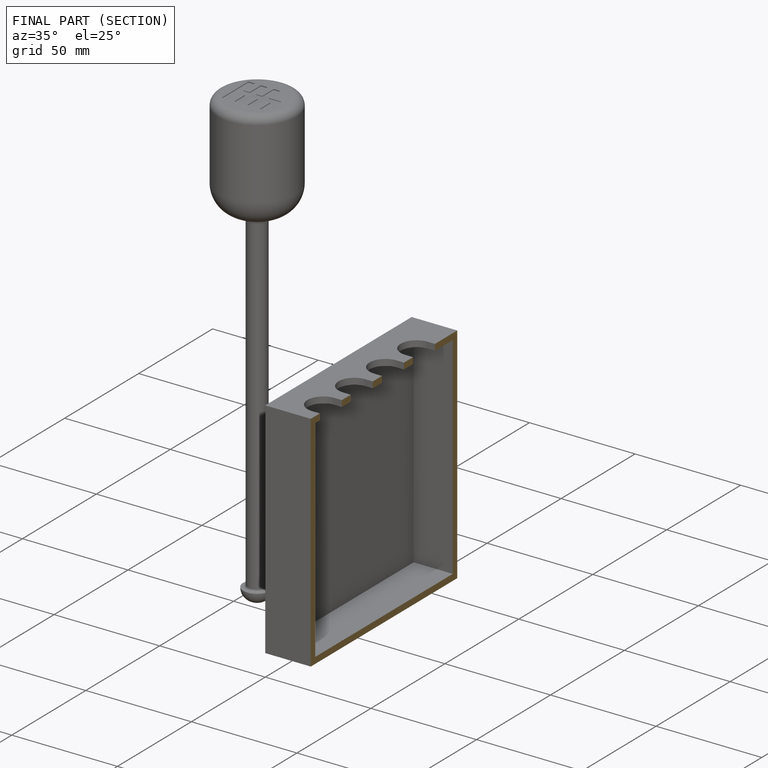
[diagram: finished part — half-section view (interior)]
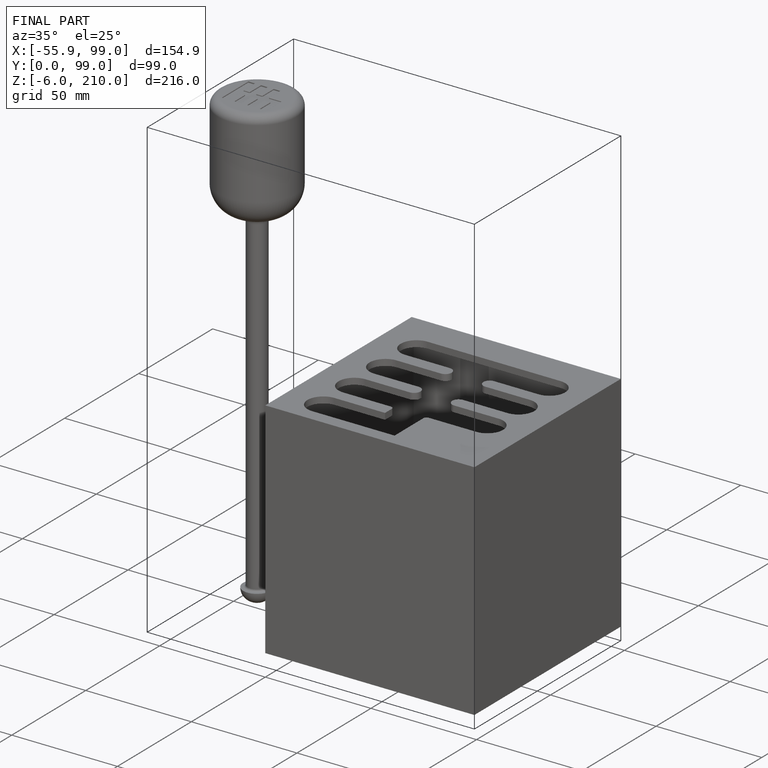
[diagram: finished part — iso view with bounding-box wireframe]
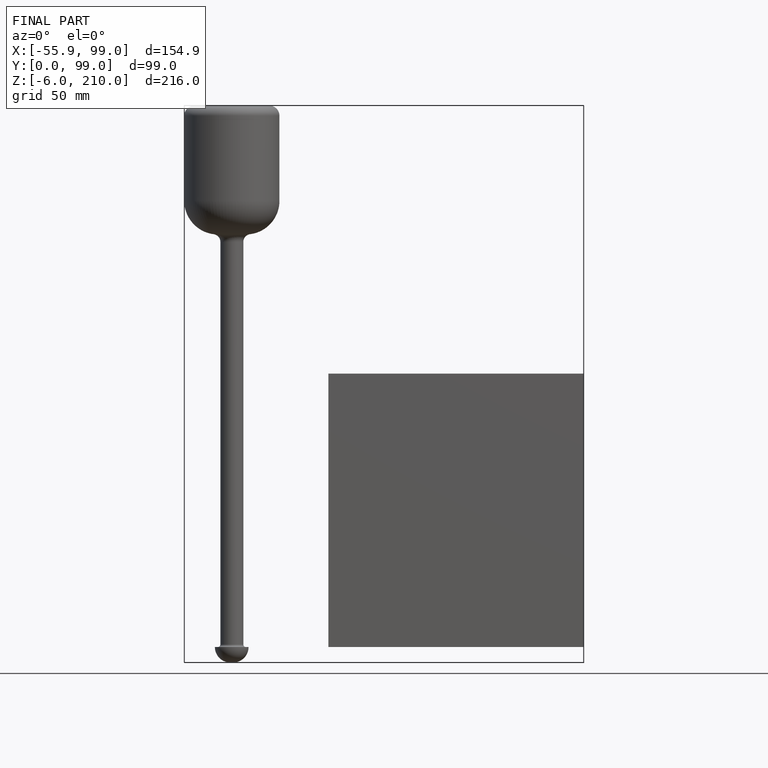
[diagram: finished part — front view with bounding-box wireframe]
